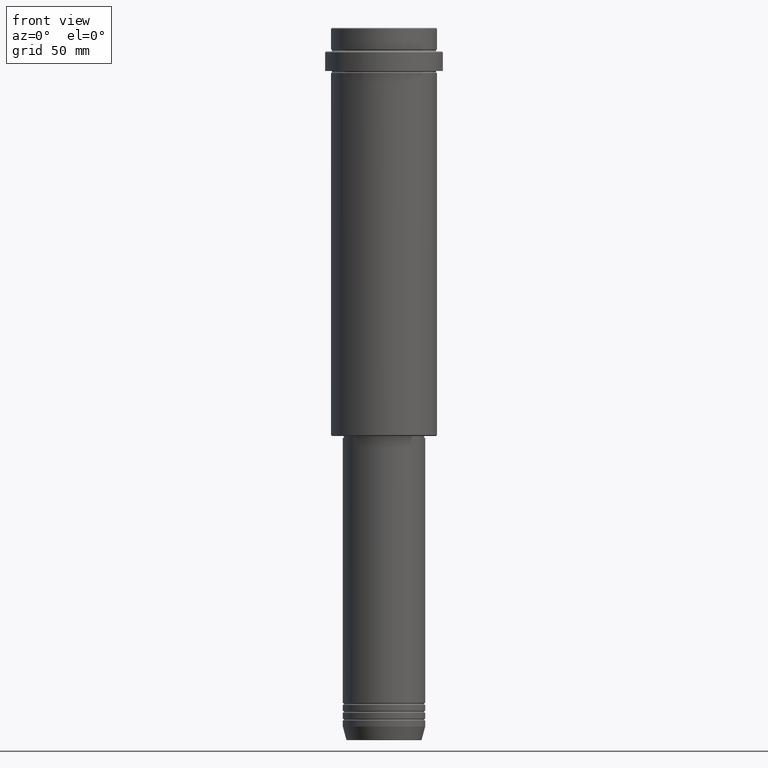
[diagram: clean part render]
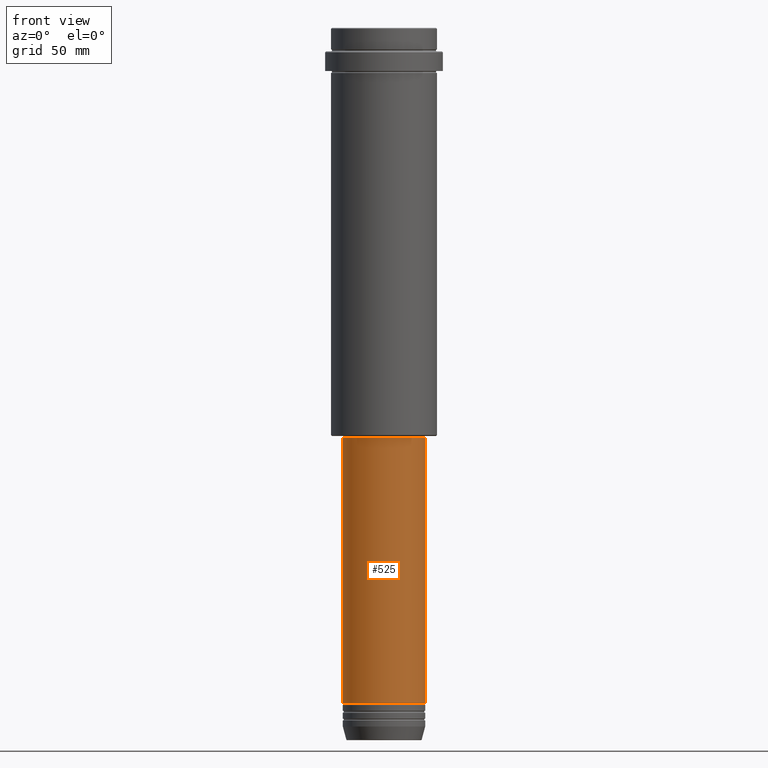
[diagram: same view with one face highlighted and labeled with its STEP entity id]
A machine part, front view. The second image highlights one B-rep face of the part: STEP entity #525.
In plain terms, the highlighted cylindrical surface (partial cylindrical patch) has radius 21 mm, axis along (-0, -0, 1).
Its self-contained STEP definition (entity closure, byte-faithful):
#6 = LINE ( 'NONE', #1211, #105 ) ;
#24 = DIRECTION ( 'NONE',  ( -0.000000000000000000, -0.000000000000000000, 1.000000000000000000 ) ) ;
#71 = LINE ( 'NONE', #851, #782 ) ;
#74 = VERTEX_POINT ( 'NONE', #764 ) ;
#105 = VECTOR ( 'NONE', #24, 1000.000000000000000 ) ;
#114 = DIRECTION ( 'NONE',  ( 1.000000000000000000, 0.000000000000000000, 0.000000000000000000 ) ) ;
#129 = DIRECTION ( 'NONE',  ( -0.000000000000000000, -0.000000000000000000, 1.000000000000000000 ) ) ;
#150 = AXIS2_PLACEMENT_3D ( 'NONE', #1048, #1289, #533 ) ;
#153 = AXIS2_PLACEMENT_3D ( 'NONE', #447, #129, #352 ) ;
#154 = VERTEX_POINT ( 'NONE', #317 ) ;
#180 = CIRCLE ( 'NONE', #829, 20.99999999999999645 ) ;
#191 = DIRECTION ( 'NONE',  ( -0.000000000000000000, -0.000000000000000000, 1.000000000000000000 ) ) ;
#212 = ORIENTED_EDGE ( 'NONE', *, *, #671, .T. ) ;
#271 = VERTEX_POINT ( 'NONE', #560 ) ;
#308 = CYLINDRICAL_SURFACE ( 'NONE', #150, 20.99999999999999645 ) ;
#317 = CARTESIAN_POINT ( 'NONE',  ( -21.00000000000000000, 2.571758278209441661E-15, -343.9999999999999432 ) ) ;
#352 = DIRECTION ( 'NONE',  ( 1.000000000000000000, 0.000000000000000000, 0.000000000000000000 ) ) ;
#356 = ORIENTED_EDGE ( 'NONE', *, *, #746, .F. ) ;
#376 = EDGE_LOOP ( 'NONE', ( #626, #212, #700, #356 ) ) ;
#447 = CARTESIAN_POINT ( 'NONE',  ( 0.000000000000000000, 0.000000000000000000, -343.9999999999999432 ) ) ;
#525 = ADVANCED_FACE ( 'NONE', ( #761 ), #308, .T. ) ;
#533 = DIRECTION ( 'NONE',  ( 1.000000000000000000, 0.000000000000000000, 0.000000000000000000 ) ) ;
#560 = CARTESIAN_POINT ( 'NONE',  ( -20.99999999999999645, 2.571758278209441267E-15, -208.9999999999999716 ) ) ;
#598 = EDGE_CURVE ( 'NONE', #74, #673, #71, .T. ) ;
#626 = ORIENTED_EDGE ( 'NONE', *, *, #650, .F. ) ;
#650 = EDGE_CURVE ( 'NONE', #154, #271, #6, .T. ) ;
#669 = CARTESIAN_POINT ( 'NONE',  ( 0.000000000000000000, 0.000000000000000000, -208.9999999999999716 ) ) ;
#671 = EDGE_CURVE ( 'NONE', #154, #74, #1203, .T. ) ;
#673 = VERTEX_POINT ( 'NONE', #1304 ) ;
#700 = ORIENTED_EDGE ( 'NONE', *, *, #598, .T. ) ;
#746 = EDGE_CURVE ( 'NONE', #271, #673, #180, .T. ) ;
#761 = FACE_OUTER_BOUND ( 'NONE', #376, .T. ) ;
#764 = CARTESIAN_POINT ( 'NONE',  ( 21.00000000000000000, 0.000000000000000000, -343.9999999999999432 ) ) ;
#782 = VECTOR ( 'NONE', #191, 1000.000000000000000 ) ;
#792 = DIRECTION ( 'NONE',  ( -0.000000000000000000, -0.000000000000000000, 1.000000000000000000 ) ) ;
#829 = AXIS2_PLACEMENT_3D ( 'NONE', #669, #792, #114 ) ;
#851 = CARTESIAN_POINT ( 'NONE',  ( 20.99999999999999645, 0.000000000000000000, 0.000000000000000000 ) ) ;
#1048 = CARTESIAN_POINT ( 'NONE',  ( 0.000000000000000000, 0.000000000000000000, 0.000000000000000000 ) ) ;
#1203 = CIRCLE ( 'NONE', #153, 21.00000000000000000 ) ;
#1211 = CARTESIAN_POINT ( 'NONE',  ( -20.99999999999999645, 2.571758278209441267E-15, 0.000000000000000000 ) ) ;
#1289 = DIRECTION ( 'NONE',  ( -0.000000000000000000, -0.000000000000000000, 1.000000000000000000 ) ) ;
#1304 = CARTESIAN_POINT ( 'NONE',  ( 20.99999999999999645, 0.000000000000000000, -208.9999999999999716 ) ) ;